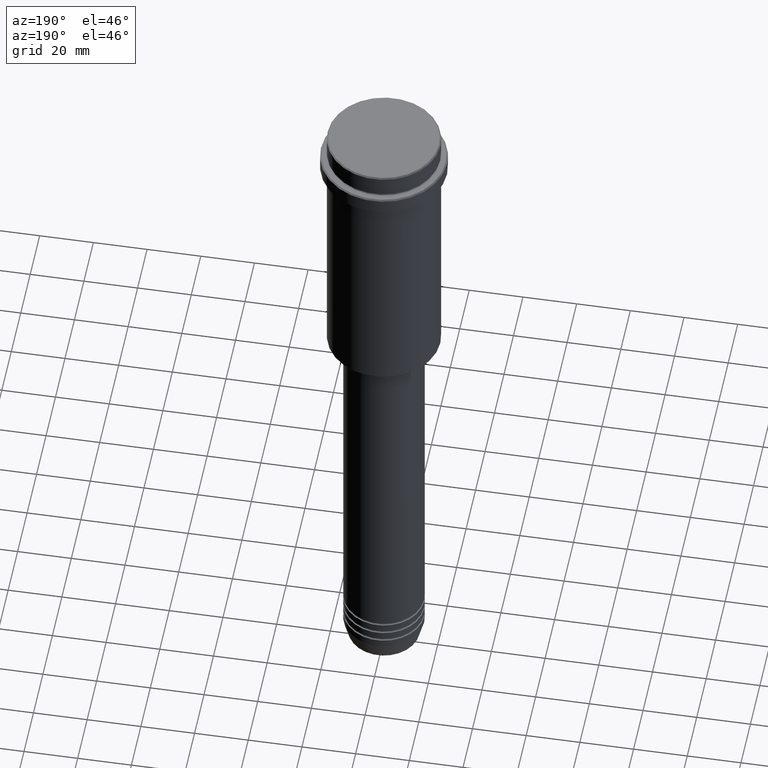
[diagram: clean part render]
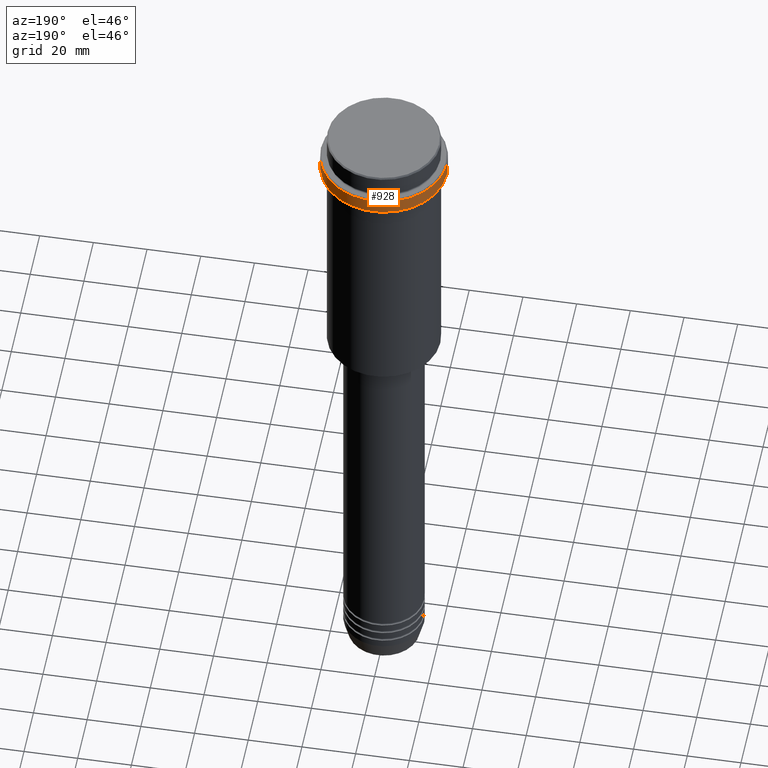
[diagram: same view with one face highlighted and labeled with its STEP entity id]
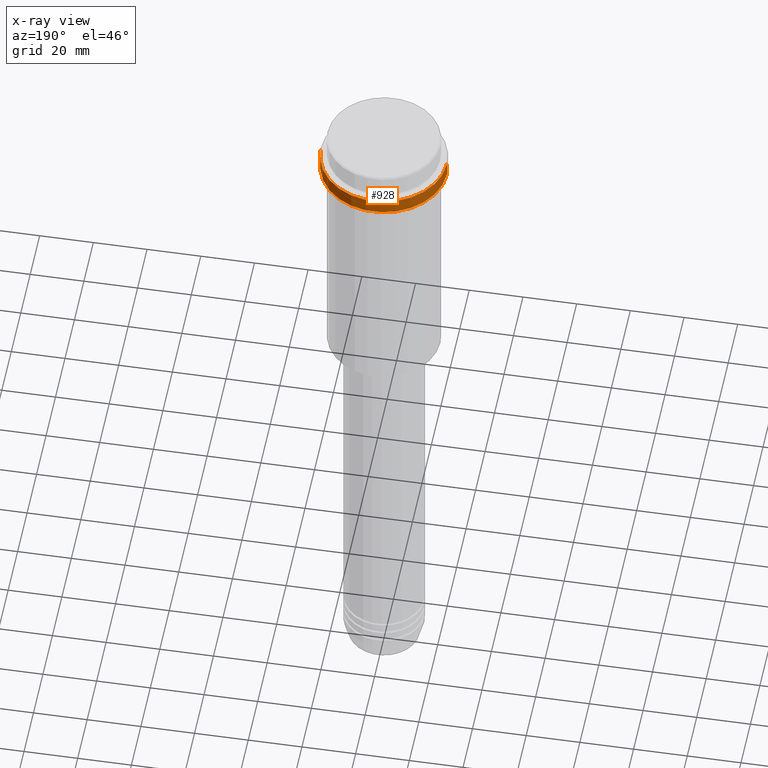
[diagram: x-ray of the same camera — body ghosted, the highlighted face saturated]
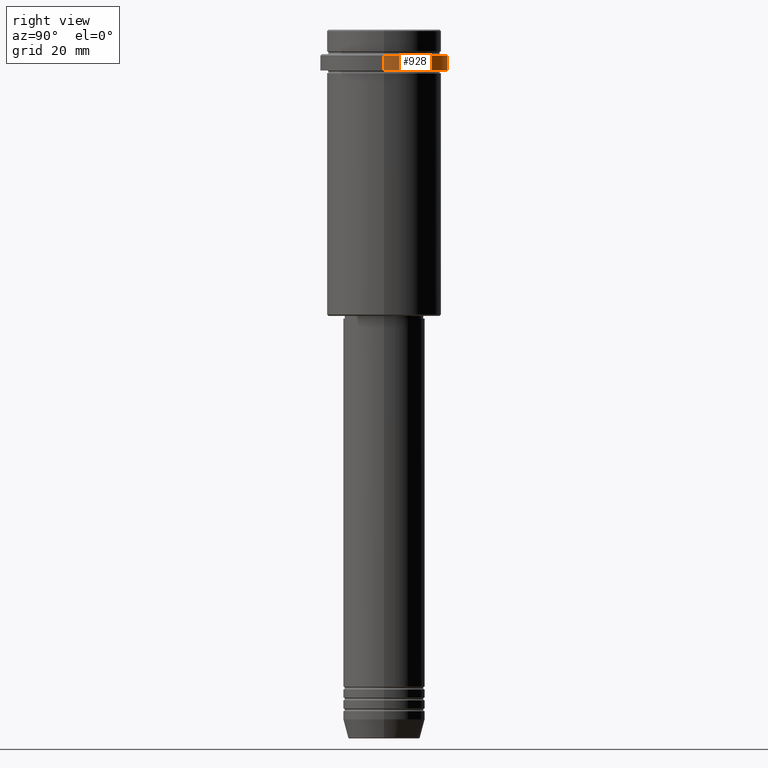
[diagram: same view with one face highlighted and labeled with its STEP entity id]
A machine part, auxiliary view. The second image highlights one B-rep face of the part: STEP entity #928.
The next image is the same camera in x-ray: the body ghosted, the highlighted face saturated — about 0% of this face is hidden behind the body in this view.
A second angle (right view) of the same face is appended — the face is thin or edge-on in the first view.
In plain terms, the highlighted cylindrical surface (partial cylindrical patch) has radius 23.5 mm, axis along (-0, -0, 1).
Its self-contained STEP definition (entity closure, byte-faithful):
#1 = CARTESIAN_POINT ( 'NONE',  ( 23.50000000000000000, 0.000000000000000000, -9.500000000000000000 ) ) ;
#39 = EDGE_CURVE ( 'NONE', #1142, #879, #958, .T. ) ;
#72 = DIRECTION ( 'NONE',  ( 1.000000000000000000, 0.000000000000000000, 0.000000000000000000 ) ) ;
#95 = LINE ( 'NONE', #645, #199 ) ;
#127 = ORIENTED_EDGE ( 'NONE', *, *, #377, .T. ) ;
#193 = CARTESIAN_POINT ( 'NONE',  ( 23.50000000000000355, 0.000000000000000000, -15.00000000000000000 ) ) ;
#199 = VECTOR ( 'NONE', #214, 1000.000000000000000 ) ;
#214 = DIRECTION ( 'NONE',  ( -0.000000000000000000, -0.000000000000000000, 1.000000000000000000 ) ) ;
#247 = VECTOR ( 'NONE', #628, 1000.000000000000000 ) ;
#354 = VERTEX_POINT ( 'NONE', #193 ) ;
#377 = EDGE_CURVE ( 'NONE', #354, #1107, #840, .T. ) ;
#431 = LINE ( 'NONE', #1188, #247 ) ;
#497 = CARTESIAN_POINT ( 'NONE',  ( 0.000000000000000000, 0.000000000000000000, -9.500000000000000000 ) ) ;
#505 = CARTESIAN_POINT ( 'NONE',  ( 0.000000000000000000, 0.000000000000000000, -15.00000000000000000 ) ) ;
#546 = AXIS2_PLACEMENT_3D ( 'NONE', #505, #1377, #556 ) ;
#556 = DIRECTION ( 'NONE',  ( 1.000000000000000000, 0.000000000000000000, 0.000000000000000000 ) ) ;
#581 = CARTESIAN_POINT ( 'NONE',  ( -23.50000000000000711, 2.877919977996281109E-15, -15.00000000000000000 ) ) ;
#627 = DIRECTION ( 'NONE',  ( 0.000000000000000000, 0.000000000000000000, -1.000000000000000000 ) ) ;
#628 = DIRECTION ( 'NONE',  ( -0.000000000000000000, -0.000000000000000000, 1.000000000000000000 ) ) ;
#645 = CARTESIAN_POINT ( 'NONE',  ( 23.50000000000000000, 0.000000000000000000, 0.000000000000000000 ) ) ;
#654 = DIRECTION ( 'NONE',  ( -0.000000000000000000, -0.000000000000000000, 1.000000000000000000 ) ) ;
#699 = AXIS2_PLACEMENT_3D ( 'NONE', #497, #627, #72 ) ;
#725 = ORIENTED_EDGE ( 'NONE', *, *, #39, .T. ) ;
#745 = CARTESIAN_POINT ( 'NONE',  ( 0.000000000000000000, 0.000000000000000000, 0.000000000000000000 ) ) ;
#825 = CARTESIAN_POINT ( 'NONE',  ( -23.50000000000000000, 2.877919977996280320E-15, -9.500000000000000000 ) ) ;
#840 = CIRCLE ( 'NONE', #546, 23.50000000000000355 ) ;
#856 = CYLINDRICAL_SURFACE ( 'NONE', #1302, 23.50000000000000000 ) ;
#879 = VERTEX_POINT ( 'NONE', #1 ) ;
#894 = ORIENTED_EDGE ( 'NONE', *, *, #1202, .T. ) ;
#928 = ADVANCED_FACE ( 'NONE', ( #975 ), #856, .T. ) ;
#958 = CIRCLE ( 'NONE', #699, 23.50000000000000000 ) ;
#975 = FACE_OUTER_BOUND ( 'NONE', #1320, .T. ) ;
#977 = ORIENTED_EDGE ( 'NONE', *, *, #1192, .F. ) ;
#1107 = VERTEX_POINT ( 'NONE', #581 ) ;
#1142 = VERTEX_POINT ( 'NONE', #825 ) ;
#1188 = CARTESIAN_POINT ( 'NONE',  ( -23.50000000000000000, 2.877919977996280320E-15, 0.000000000000000000 ) ) ;
#1192 = EDGE_CURVE ( 'NONE', #354, #879, #95, .T. ) ;
#1202 = EDGE_CURVE ( 'NONE', #1107, #1142, #431, .T. ) ;
#1223 = DIRECTION ( 'NONE',  ( 1.000000000000000000, 0.000000000000000000, 0.000000000000000000 ) ) ;
#1302 = AXIS2_PLACEMENT_3D ( 'NONE', #745, #654, #1223 ) ;
#1320 = EDGE_LOOP ( 'NONE', ( #127, #894, #725, #977 ) ) ;
#1377 = DIRECTION ( 'NONE',  ( -0.000000000000000000, -0.000000000000000000, 1.000000000000000000 ) ) ;